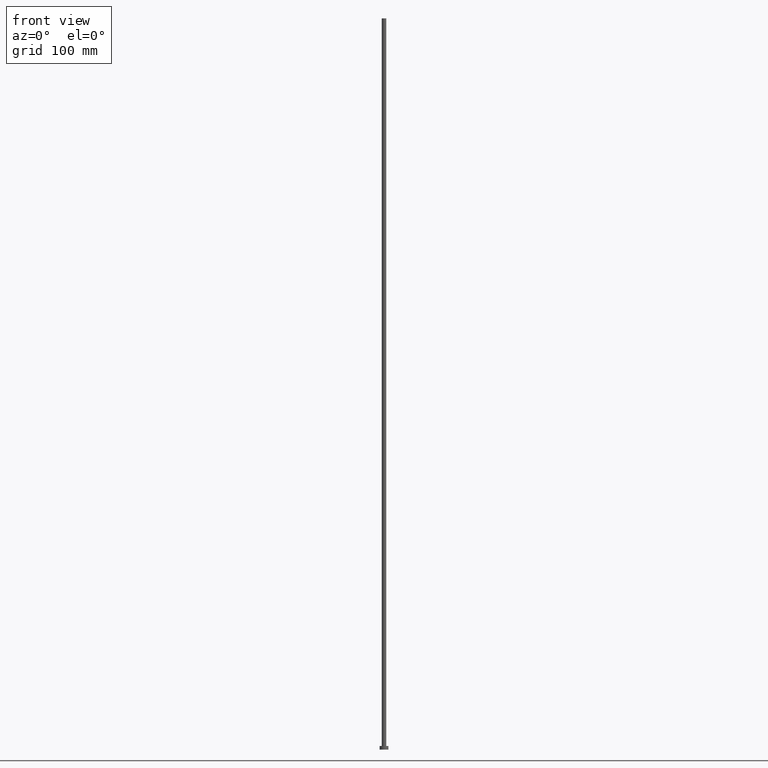
[diagram: clean part render]
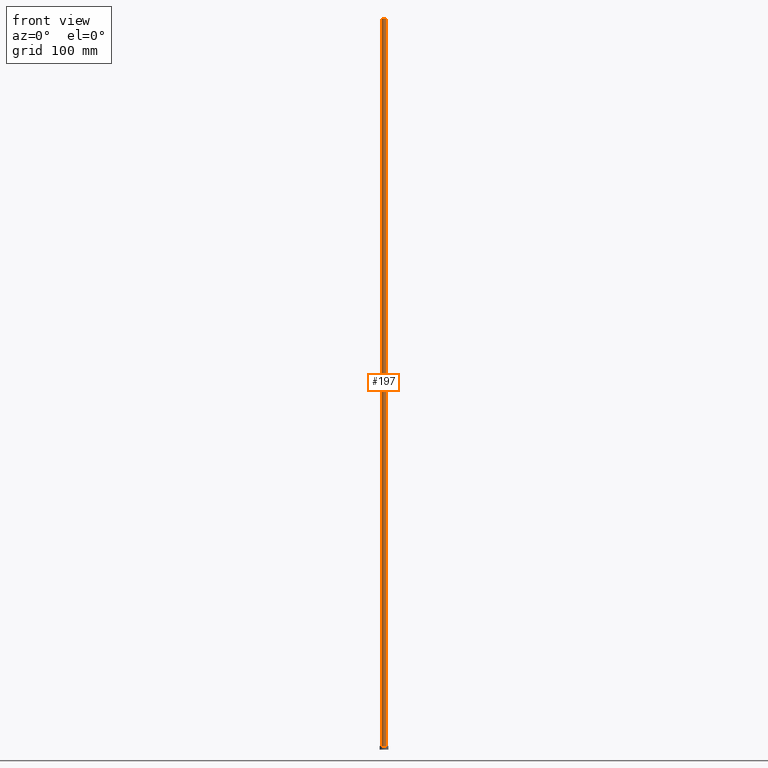
[diagram: same view with one face highlighted and labeled with its STEP entity id]
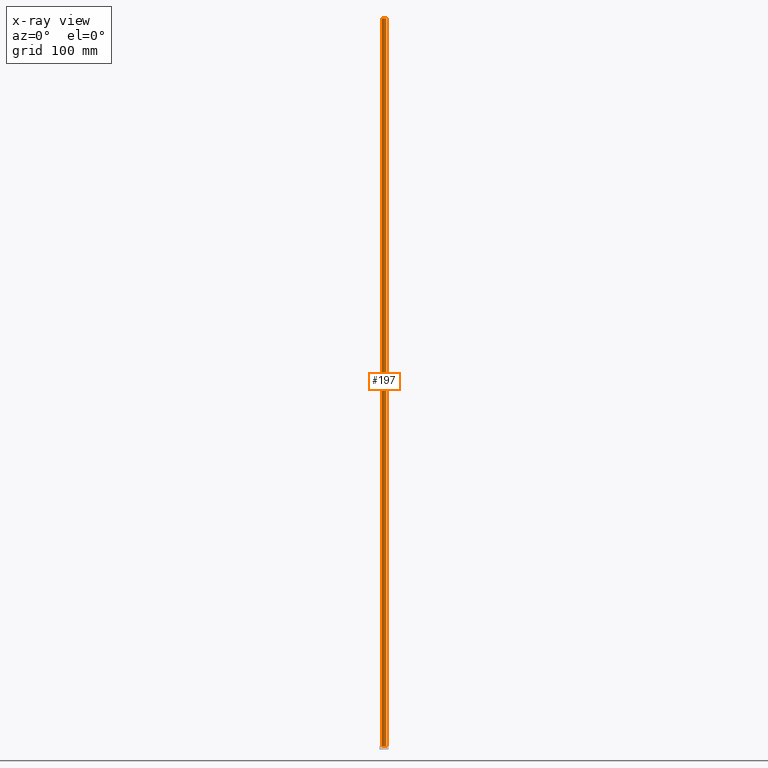
[diagram: x-ray of the same camera — body ghosted, the highlighted face saturated]
A machine part, front view. The second image highlights one B-rep face of the part: STEP entity #197.
The next image is the same camera in x-ray: the body ghosted, the highlighted face saturated — about 0% of this face is hidden behind the body in this view.
In plain terms, the highlighted cylindrical surface (edge-blend (fillet) strip) has radius 3 mm, axis along (-0, -0, -1).
Its self-contained STEP definition (entity closure, byte-faithful):
#3 = DIRECTION ( 'NONE',  ( 1.000000000000000000, 0.000000000000000000, 0.000000000000000000 ) ) ;
#6 = DIRECTION ( 'NONE',  ( 1.000000000000000000, 0.000000000000000000, 0.000000000000000000 ) ) ;
#19 = VECTOR ( 'NONE', #20, 1000.000000000000000 ) ;
#20 = DIRECTION ( 'NONE',  ( -0.000000000000000000, -0.000000000000000000, -1.000000000000000000 ) ) ;
#28 = CIRCLE ( 'NONE', #108, 3.000000000000000444 ) ;
#35 = CARTESIAN_POINT ( 'NONE',  ( -3.000000000000000444, 0.000000000000000000, 1000.000000000000000 ) ) ;
#41 = DIRECTION ( 'NONE',  ( 0.000000000000000000, 0.000000000000000000, 1.000000000000000000 ) ) ;
#54 = FACE_OUTER_BOUND ( 'NONE', #202, .T. ) ;
#56 = EDGE_CURVE ( 'NONE', #239, #236, #28, .T. ) ;
#58 = VERTEX_POINT ( 'NONE', #203 ) ;
#63 = EDGE_CURVE ( 'NONE', #103, #58, #173, .T. ) ;
#66 = CARTESIAN_POINT ( 'NONE',  ( -3.000000000000000444, 0.000000000000000000, 1000.000000000000000 ) ) ;
#81 = AXIS2_PLACEMENT_3D ( 'NONE', #180, #182, #3 ) ;
#100 = CARTESIAN_POINT ( 'NONE',  ( -3.000000000000000444, 0.000000000000000000, 5.000000000000000000 ) ) ;
#101 = ORIENTED_EDGE ( 'NONE', *, *, #224, .F. ) ;
#103 = VERTEX_POINT ( 'NONE', #66 ) ;
#108 = AXIS2_PLACEMENT_3D ( 'NONE', #219, #41, #6 ) ;
#117 = CARTESIAN_POINT ( 'NONE',  ( 0.000000000000000000, 0.000000000000000000, 1000.000000000000000 ) ) ;
#136 = LINE ( 'NONE', #139, #19 ) ;
#139 = CARTESIAN_POINT ( 'NONE',  ( 3.000000000000000444, 3.673940397442059868E-16, 1000.000000000000000 ) ) ;
#148 = LINE ( 'NONE', #35, #242 ) ;
#150 = CARTESIAN_POINT ( 'NONE',  ( 3.000000000000000444, 3.673940397442059868E-16, 5.000000000000000000 ) ) ;
#152 = CYLINDRICAL_SURFACE ( 'NONE', #218, 3.000000000000000444 ) ;
#165 = EDGE_CURVE ( 'NONE', #103, #239, #148, .T. ) ;
#173 = CIRCLE ( 'NONE', #81, 3.000000000000000444 ) ;
#180 = CARTESIAN_POINT ( 'NONE',  ( 0.000000000000000000, 0.000000000000000000, 1000.000000000000000 ) ) ;
#182 = DIRECTION ( 'NONE',  ( 0.000000000000000000, 0.000000000000000000, 1.000000000000000000 ) ) ;
#189 = DIRECTION ( 'NONE',  ( -0.000000000000000000, -0.000000000000000000, -1.000000000000000000 ) ) ;
#191 = DIRECTION ( 'NONE',  ( -0.000000000000000000, -0.000000000000000000, -1.000000000000000000 ) ) ;
#197 = ADVANCED_FACE ( 'NONE', ( #54 ), #152, .T. ) ;
#198 = ORIENTED_EDGE ( 'NONE', *, *, #63, .F. ) ;
#202 = EDGE_LOOP ( 'NONE', ( #101, #198, #205, #217 ) ) ;
#203 = CARTESIAN_POINT ( 'NONE',  ( 3.000000000000000444, 3.673940397442059868E-16, 1000.000000000000000 ) ) ;
#205 = ORIENTED_EDGE ( 'NONE', *, *, #165, .T. ) ;
#217 = ORIENTED_EDGE ( 'NONE', *, *, #56, .T. ) ;
#218 = AXIS2_PLACEMENT_3D ( 'NONE', #117, #191, #237 ) ;
#219 = CARTESIAN_POINT ( 'NONE',  ( 0.000000000000000000, 0.000000000000000000, 5.000000000000000000 ) ) ;
#224 = EDGE_CURVE ( 'NONE', #58, #236, #136, .T. ) ;
#236 = VERTEX_POINT ( 'NONE', #150 ) ;
#237 = DIRECTION ( 'NONE',  ( -1.000000000000000000, 0.000000000000000000, 0.000000000000000000 ) ) ;
#239 = VERTEX_POINT ( 'NONE', #100 ) ;
#242 = VECTOR ( 'NONE', #189, 1000.000000000000000 ) ;